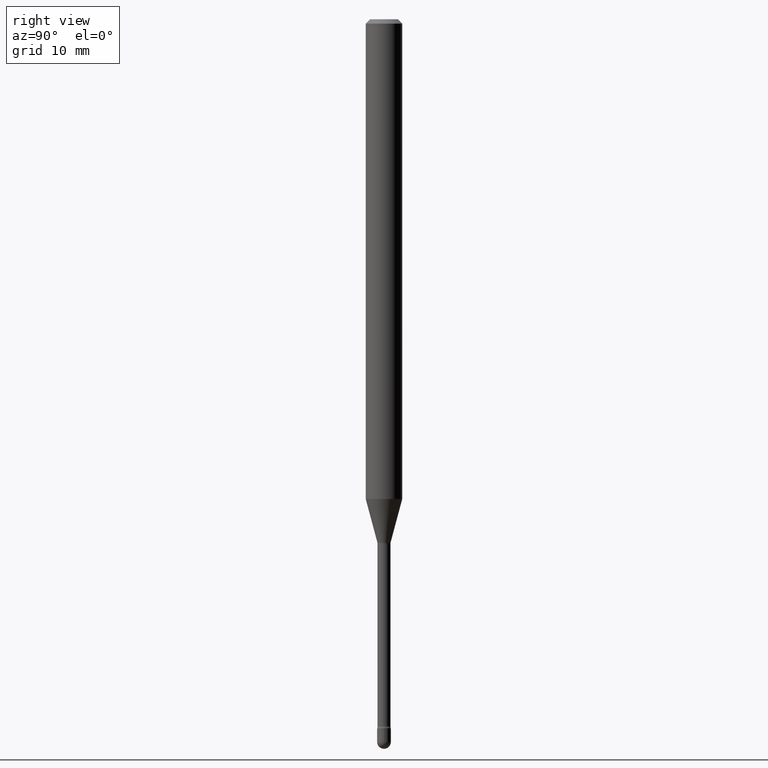
[diagram: clean part render]
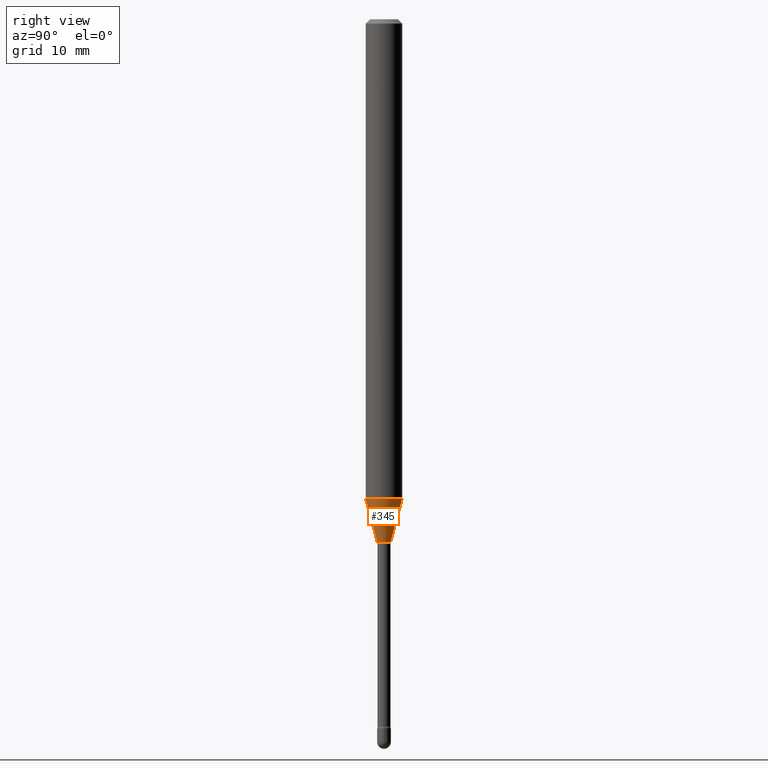
[diagram: same view with one face highlighted and labeled with its STEP entity id]
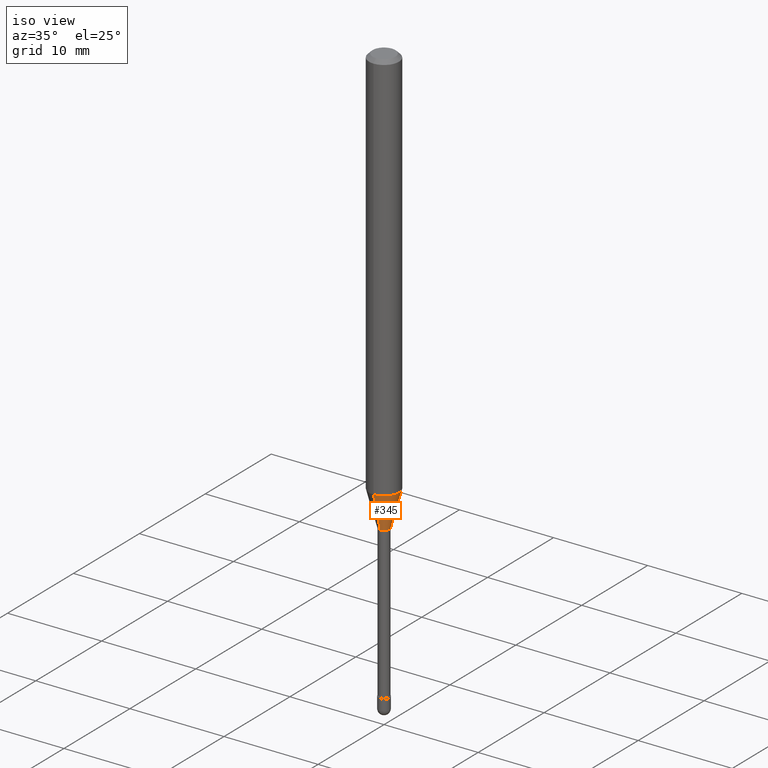
[diagram: same view with one face highlighted and labeled with its STEP entity id]
A machine part, right view. The second image highlights one B-rep face of the part: STEP entity #345.
A second angle (iso view) of the same face is appended — the face is thin or edge-on in the first view.
In plain terms, the highlighted conical surface has half-angle 15 deg.
Its self-contained STEP definition (entity closure, byte-faithful):
#14 = VECTOR ( 'NONE', #210, 39.37007874015747433 ) ;
#23 = LINE ( 'NONE', #370, #14 ) ;
#24 = FACE_OUTER_BOUND ( 'NONE', #421, .T. ) ;
#42 = ORIENTED_EDGE ( 'NONE', *, *, #69, .F. ) ;
#51 = EDGE_CURVE ( 'NONE', #173, #335, #311, .T. ) ;
#53 = CONICAL_SURFACE ( 'NONE', #148, 0.02261111260566398690, 0.2617993877991501295 ) ;
#69 = EDGE_CURVE ( 'NONE', #259, #392, #255, .T. ) ;
#70 = DIRECTION ( 'NONE',  ( -2.445456806742390166E-29, 3.491498522728124281E-15, 1.000000000000000000 ) ) ;
#94 = ORIENTED_EDGE ( 'NONE', *, *, #51, .T. ) ;
#106 = CARTESIAN_POINT ( 'NONE',  ( 4.384930263614428569E-29, -6.260579821105140971E-15, -1.793092501787273196 ) ) ;
#118 = ORIENTED_EDGE ( 'NONE', *, *, #481, .T. ) ;
#148 = AXIS2_PLACEMENT_3D ( 'NONE', #106, #414, #161 ) ;
#156 = LINE ( 'NONE', #385, #530 ) ;
#161 = DIRECTION ( 'NONE',  ( -6.982962677686265922E-15, -1.000000000000000000, 0.000000000000000000 ) ) ;
#173 = VERTEX_POINT ( 'NONE', #276 ) ;
#176 = DIRECTION ( 'NONE',  ( -2.445456806742390166E-29, 3.491498522728124281E-15, 1.000000000000000000 ) ) ;
#210 = DIRECTION ( 'NONE',  ( 1.839019923739599526E-15, 0.2588190451025248473, 0.9659258262890673130 ) ) ;
#255 = CIRCLE ( 'NONE', #485, 0.06250000000000000000 ) ;
#259 = VERTEX_POINT ( 'NONE', #407 ) ;
#276 = CARTESIAN_POINT ( 'NONE',  ( -1.578925554262692203E-16, -0.02261111260567024925, -1.793092501787273196 ) ) ;
#289 = DIRECTION ( 'NONE',  ( -1.807323732225328562E-15, -0.2588190451025179639, 0.9659258262890689783 ) ) ;
#293 = CARTESIAN_POINT ( 'NONE',  ( 4.020881578463291233E-29, -5.740809673089514133E-15, -1.644225147374217988 ) ) ;
#311 = CIRCLE ( 'NONE', #368, 0.02261111260566398690 ) ;
#335 = VERTEX_POINT ( 'NONE', #371 ) ;
#345 = ADVANCED_FACE ( 'NONE', ( #24 ), #53, .T. ) ;
#347 = DIRECTION ( 'NONE',  ( -6.982962677686265922E-15, -1.000000000000000000, 0.000000000000000000 ) ) ;
#368 = AXIS2_PLACEMENT_3D ( 'NONE', #397, #176, #347 ) ;
#370 = CARTESIAN_POINT ( 'NONE',  ( 1.606616180941255974E-16, 0.02261111260565772454, -1.793092501787273196 ) ) ;
#371 = CARTESIAN_POINT ( 'NONE',  ( 3.023754139721142721E-16, 0.02261111260565773148, -1.793092501787273196 ) ) ;
#385 = CARTESIAN_POINT ( 'NONE',  ( -1.578925554262692203E-16, -0.02261111260567024925, -1.793092501787273196 ) ) ;
#392 = VERTEX_POINT ( 'NONE', #408 ) ;
#397 = CARTESIAN_POINT ( 'NONE',  ( 4.384930263614428569E-29, -6.260579821105140971E-15, -1.793092501787273196 ) ) ;
#407 = CARTESIAN_POINT ( 'NONE',  ( -4.364351673553515854E-16, -0.06250000000000575928, -1.644225147374217544 ) ) ;
#408 = CARTESIAN_POINT ( 'NONE',  ( 4.440892098501025523E-16, 0.06249999999999423378, -1.644225147374218210 ) ) ;
#414 = DIRECTION ( 'NONE',  ( -2.445456806742390166E-29, 3.491498522728124281E-15, 1.000000000000000000 ) ) ;
#421 = EDGE_LOOP ( 'NONE', ( #94, #118, #42, #544 ) ) ;
#481 = EDGE_CURVE ( 'NONE', #335, #392, #23, .T. ) ;
#485 = AXIS2_PLACEMENT_3D ( 'NONE', #293, #70, #509 ) ;
#486 = EDGE_CURVE ( 'NONE', #173, #259, #156, .T. ) ;
#509 = DIRECTION ( 'NONE',  ( -6.982962677686265922E-15, -1.000000000000000000, 4.370956789862821150E-15 ) ) ;
#530 = VECTOR ( 'NONE', #289, 39.37007874015749564 ) ;
#544 = ORIENTED_EDGE ( 'NONE', *, *, #486, .F. ) ;